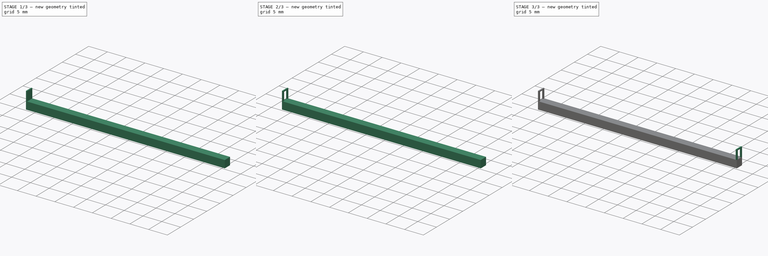
[diagram: build sequence overview — one tinted view per stage of 3, left to right]
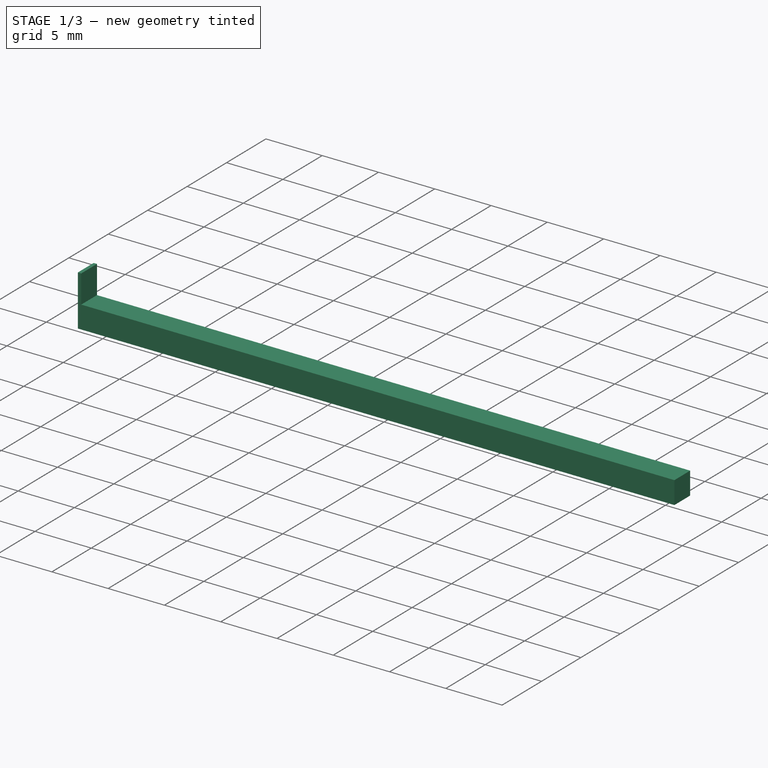
[diagram: stage 1 of 3 — iso view after this stage's code; geometry added in this stage tinted green]
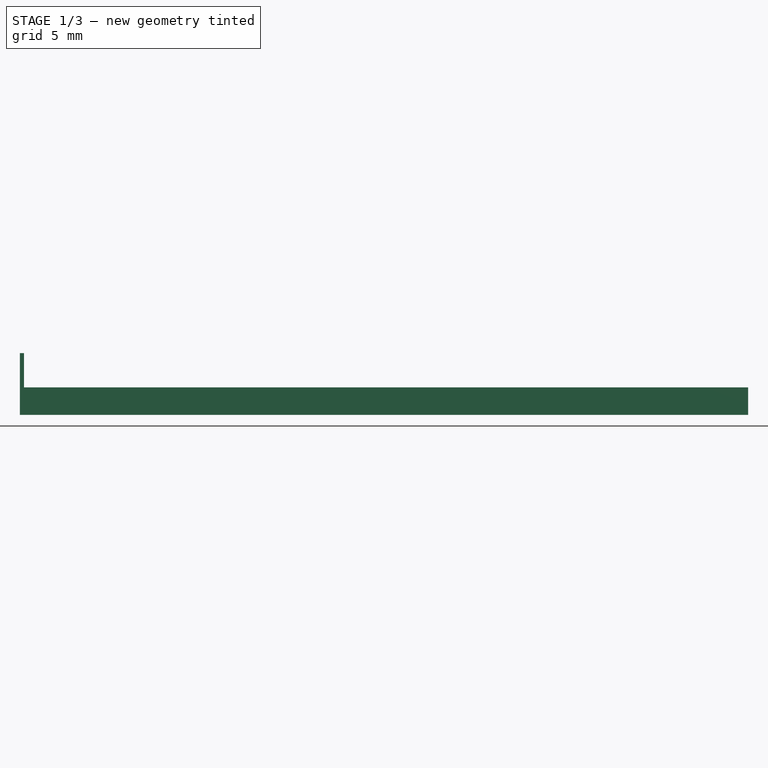
[diagram: stage 1 of 3 — front view after this stage's code; geometry added in this stage tinted green]
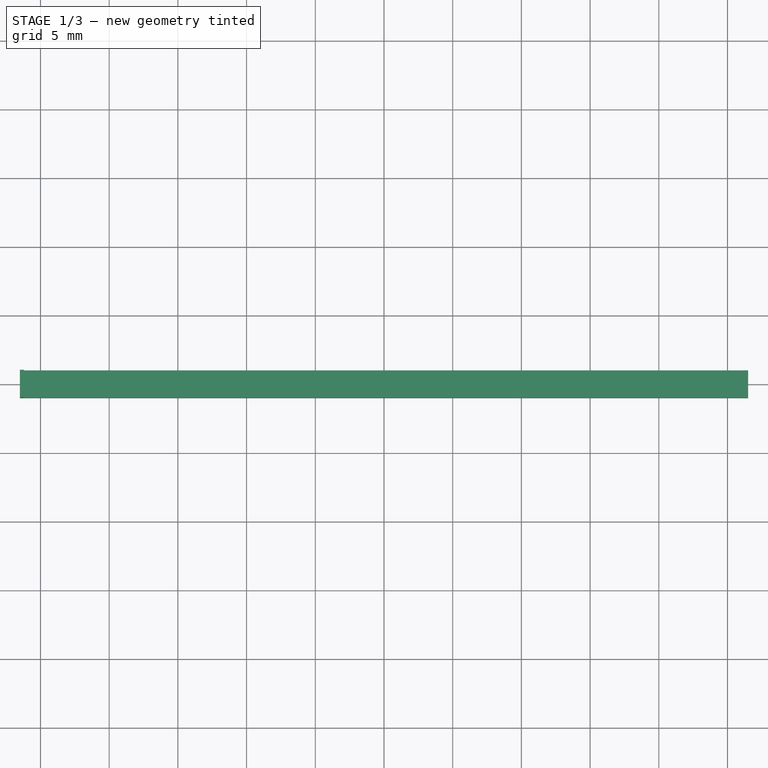
[diagram: stage 1 of 3 — top view after this stage's code; geometry added in this stage tinted green]
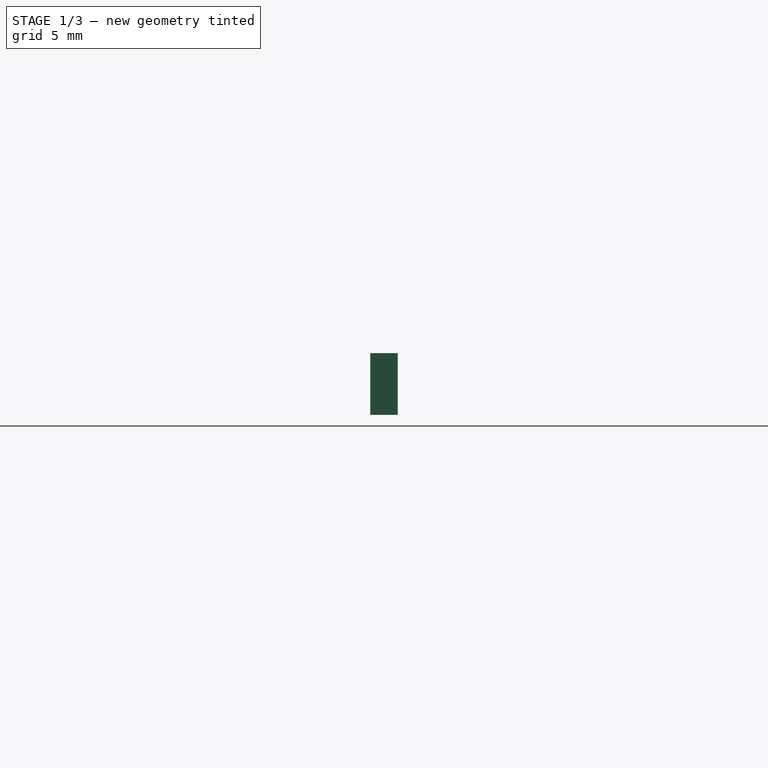
[diagram: stage 1 of 3 — right view after this stage's code; geometry added in this stage tinted green]
FCSTD DOCUMENT  (FreeCAD 0.19R)
Label: rebus-chipset-guard
License: All rights reserved
LicenseURL: http://en.wikipedia.org/wiki/All_rights_reserved
objects: Sketcher::SketchObject×3, PartDesign::Pad×2, PartDesign::Mirrored×2, PartDesign::Pocket×1, PartDesign::Body×1
note: 12 computed .brp shape members not serialized (recipe doc carries the construction recipe); baked Part::Feature solids carry a one-line shape summary decoded from their .brp

FEATURE [Sketcher::SketchObject] Sketch
  FullyConstrained = true
  MapMode = 5
  Support = -> [XY_Plane]
  sketch-geometry (4):
    g0: LineSegment StartX=-26.5 StartY=1 StartZ=0 EndX=26.5 EndY=1 EndZ=0
    g1: LineSegment StartX=26.5 StartY=1 StartZ=0 EndX=26.5 EndY=-1 EndZ=0
    g2: LineSegment StartX=26.5 StartY=-1 StartZ=0 EndX=-26.5 EndY=-1 EndZ=0
    g3: LineSegment StartX=-26.5 StartY=-1 StartZ=0 EndX=-26.5 EndY=1 EndZ=0
  constraints (10):
    c: Coincident(g0,g1)
    c: Coincident(g1,g2)
    c: Coincident(g2,g3)
    c: Coincident(g3,g0)
    c: Horizontal(g0)
    c: Vertical(g3)
    c: DistanceX(g0,g0) = 53
    c: DistanceY(g3,g3) = 2
    c: Symmetric(g2,g1,g-2)
    c: Symmetric(g0,g1,g-1)
FEATURE [PartDesign::Pad] Pad
  Direction = (1,1,1)
  Length = 2
  Length2 = 100
  Profile = -> Sketch
  Type = 0
FEATURE [Sketcher::SketchObject] Sketch001
  ExternalGeometry = -> [Pad]
  FullyConstrained = true
  MapMode = 5
  Placement = pos=(0,0,2) rot=(0,0,1;0rad)
  Support = -> [Pad]
  sketch-geometry (4):
    g0: LineSegment StartX=-26.5 StartY=1 StartZ=0 EndX=-26.2 EndY=1 EndZ=0
    g1: LineSegment StartX=-26.2 StartY=1 StartZ=0 EndX=-26.2 EndY=-1 EndZ=0
    g2: LineSegment StartX=-26.2 StartY=-1 StartZ=0 EndX=-26.5 EndY=-1 EndZ=0
    g3: LineSegment StartX=-26.5 StartY=-1 StartZ=0 EndX=-26.5 EndY=1 EndZ=0
  constraints (10):
    c: Coincident(g0,g1)
    c: Coincident(g1,g2)
    c: Coincident(g2,g3)
    c: Coincident(g3,g0)
    c: Horizontal(g0)
    c: Horizontal(g2)
    c: Vertical(g1)
    c: Coincident(g0,g-3)
    c: Coincident(g2,g-4)
    c: DistanceX(g0,g0) = 0.3
FEATURE [PartDesign::Pad] Pad001
  BaseFeature = -> Pad
  Direction = (1,1,1)
  Length = 2.5
  Length2 = 100
  Profile = -> Sketch001
  Type = 0
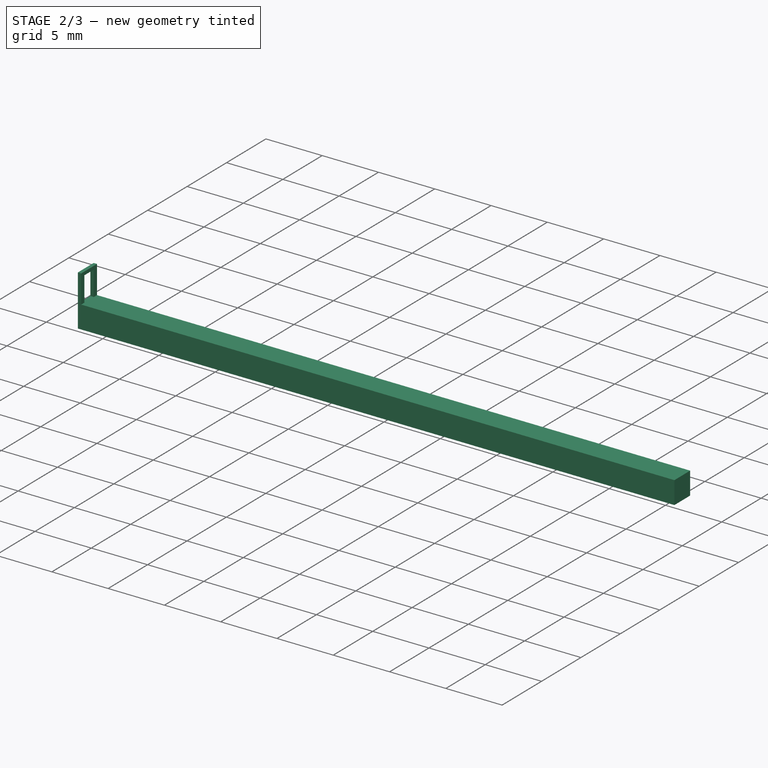
[diagram: stage 2 of 3 — iso view after this stage's code; geometry added in this stage tinted green]
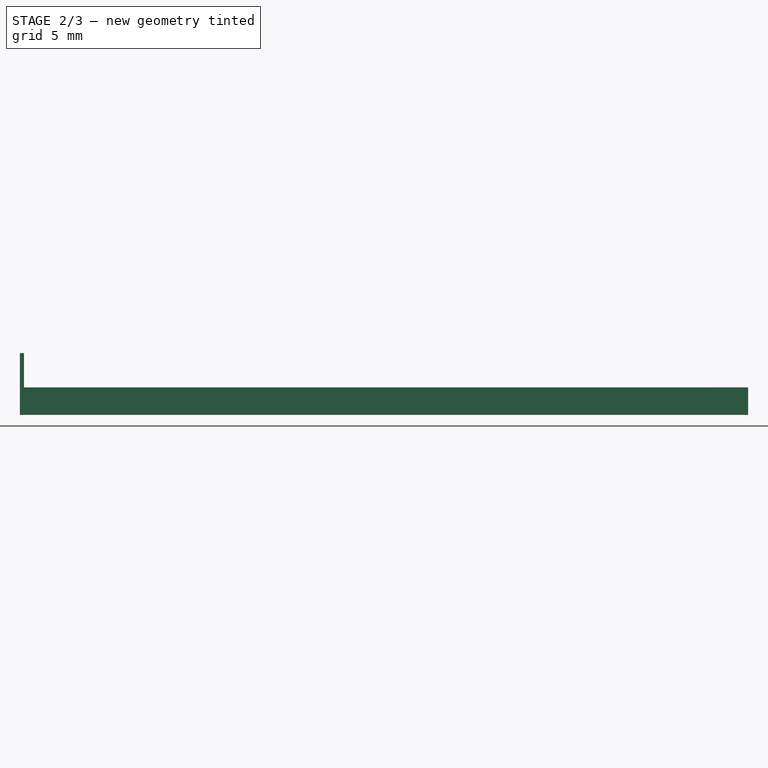
[diagram: stage 2 of 3 — front view after this stage's code; geometry added in this stage tinted green]
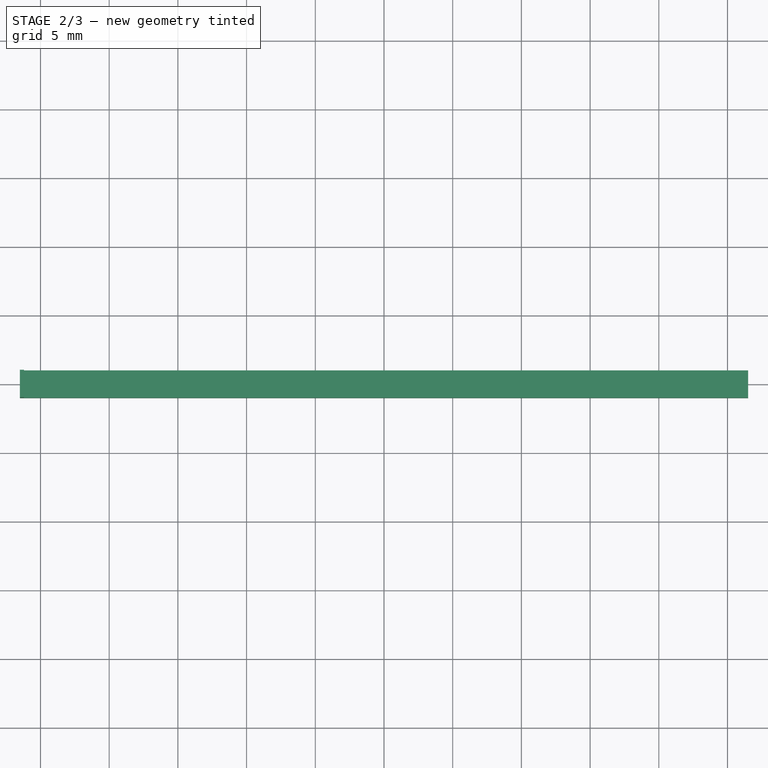
[diagram: stage 2 of 3 — top view after this stage's code; geometry added in this stage tinted green]
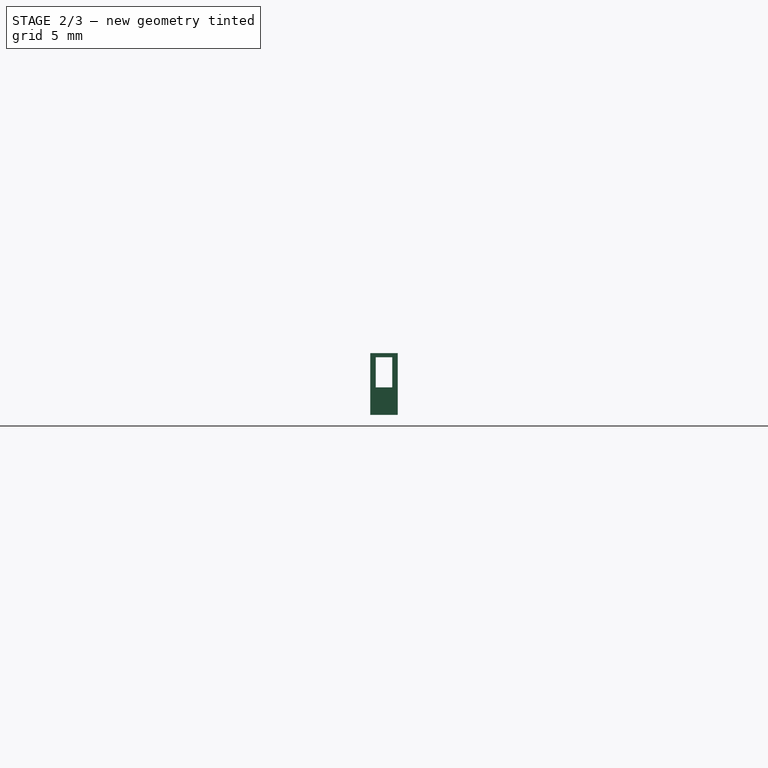
[diagram: stage 2 of 3 — right view after this stage's code; geometry added in this stage tinted green]
FEATURE [Sketcher::SketchObject] Sketch002
  ExternalGeometry = -> [Pad001]
  FullyConstrained = true
  MapMode = 5
  Placement = pos=(-26.5,0,0) rot=(0.57735,-0.57735,-0.57735;2.0944rad)
  Support = -> [Pad001]
  sketch-geometry (4):
    g0: LineSegment StartX=-0.6 StartY=4.2 StartZ=0 EndX=0.6 EndY=4.2 EndZ=0
    g1: LineSegment StartX=0.6 StartY=4.2 StartZ=0 EndX=0.6 EndY=2 EndZ=0
    g2: LineSegment StartX=0.6 StartY=2 StartZ=0 EndX=-0.6 EndY=2 EndZ=0
    g3: LineSegment StartX=-0.6 StartY=2 StartZ=0 EndX=-0.6 EndY=4.2 EndZ=0
  constraints (11):
    c: Coincident(g0,g1)
    c: Coincident(g1,g2)
    c: Coincident(g2,g3)
    c: Coincident(g3,g0)
    c: Horizontal(g2)
    c: Vertical(g1)
    c: Vertical(g3)
    c: DistanceY(g1,g1) = 2.2
    c: Horizontal(g1,g-3)
    c: DistanceX(g0,g0) = 1.2
    c: Symmetric(g0,g0,g-2)
FEATURE [PartDesign::Pocket] Pocket
  BaseFeature = -> Pad001
  Length = 0.3
  Length2 = 100
  Profile = -> Sketch002
  Type = 0
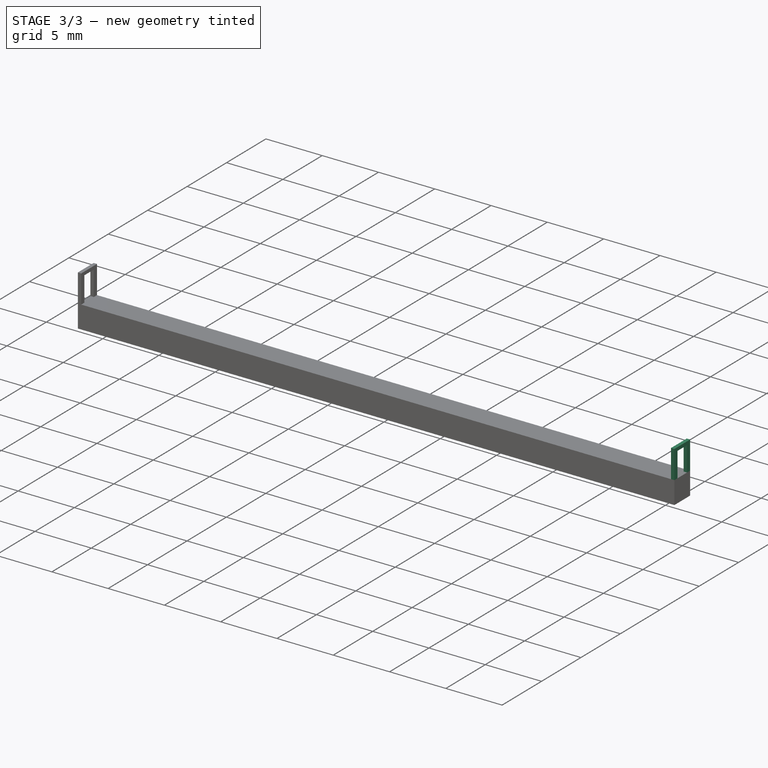
[diagram: stage 3 of 3 — iso view after this stage's code; geometry added in this stage tinted green]
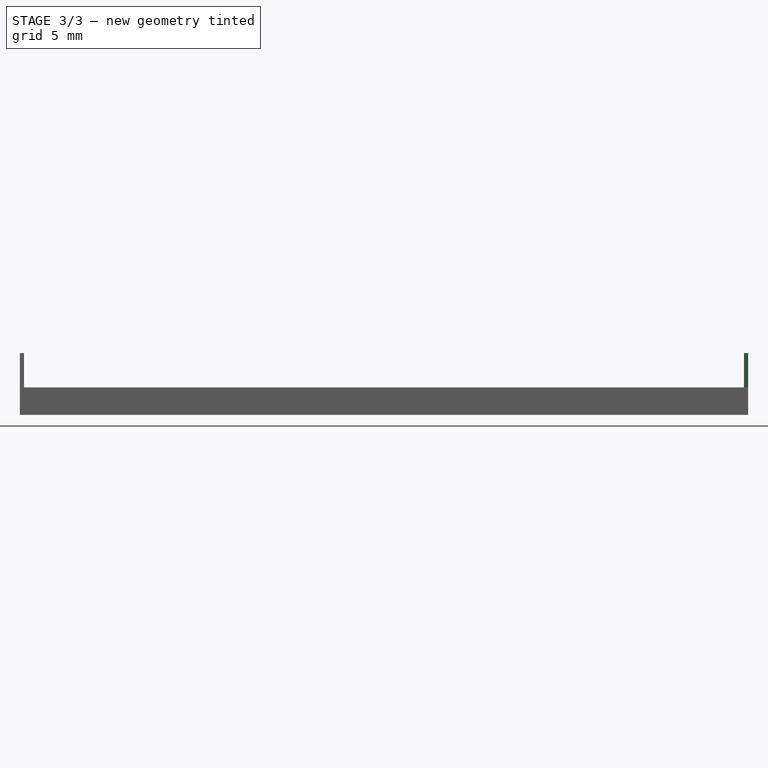
[diagram: stage 3 of 3 — front view after this stage's code; geometry added in this stage tinted green]
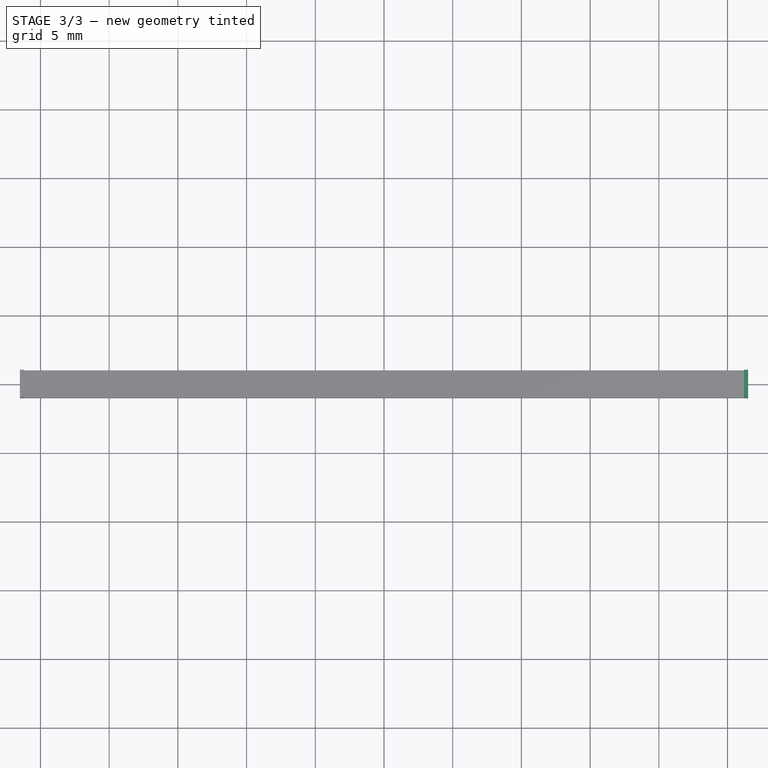
[diagram: stage 3 of 3 — top view after this stage's code; geometry added in this stage tinted green]
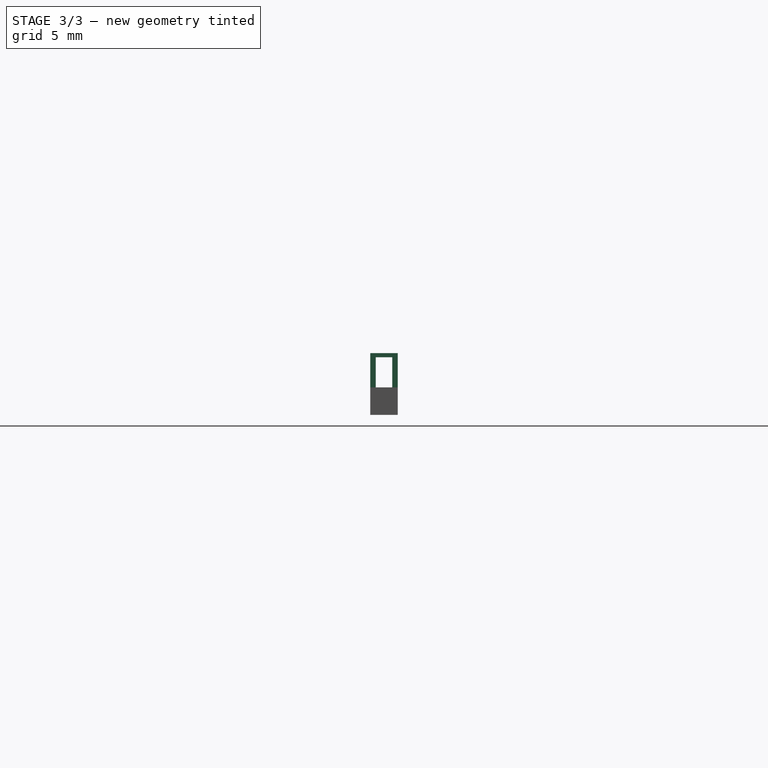
[diagram: stage 3 of 3 — right view after this stage's code; geometry added in this stage tinted green]
FEATURE [PartDesign::Mirrored] Mirrored
  BaseFeature = -> Pocket
  MirrorPlane = -> Sketch001 [V_Axis]
  Originals = -> [Pad001]
FEATURE [PartDesign::Mirrored] Mirrored001
  BaseFeature = -> Mirrored
  MirrorPlane = -> YZ_Plane
  Originals = -> [Pocket]
FEATURE [PartDesign::Body] Body
  Group = -> [Sketch,Pad,Sketch001,Pad001,Sketch002,Pocket,Mirrored,Mirrored001]
  Origin = -> Origin
  Tip = -> Mirrored001
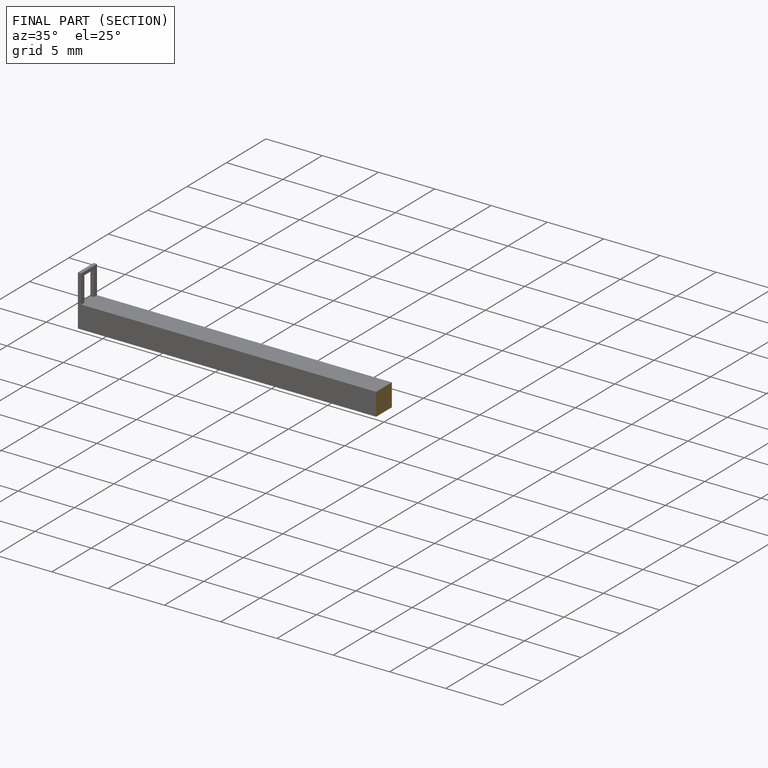
[diagram: finished part — half-section view (interior)]
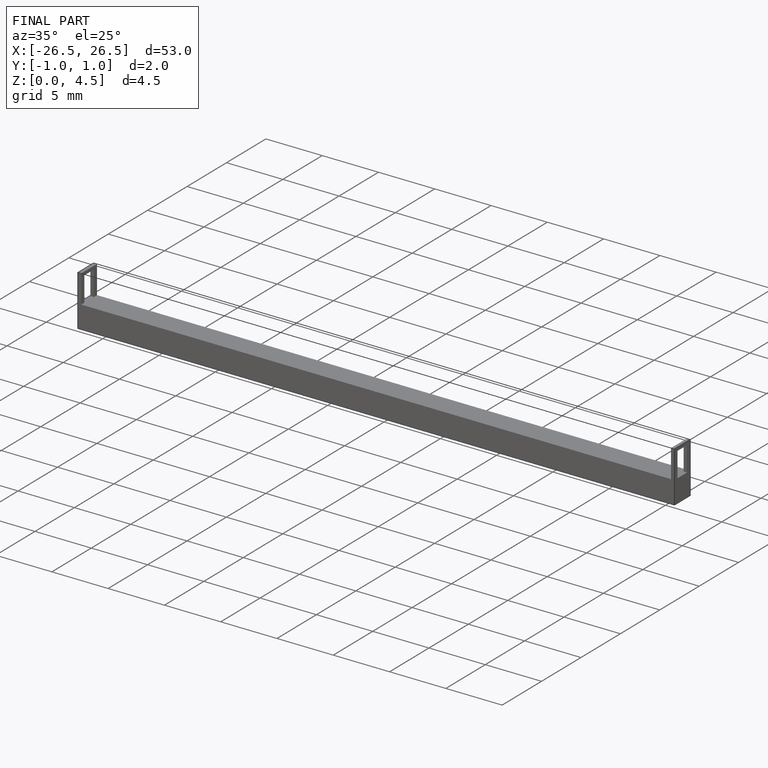
[diagram: finished part — iso view with bounding-box wireframe]
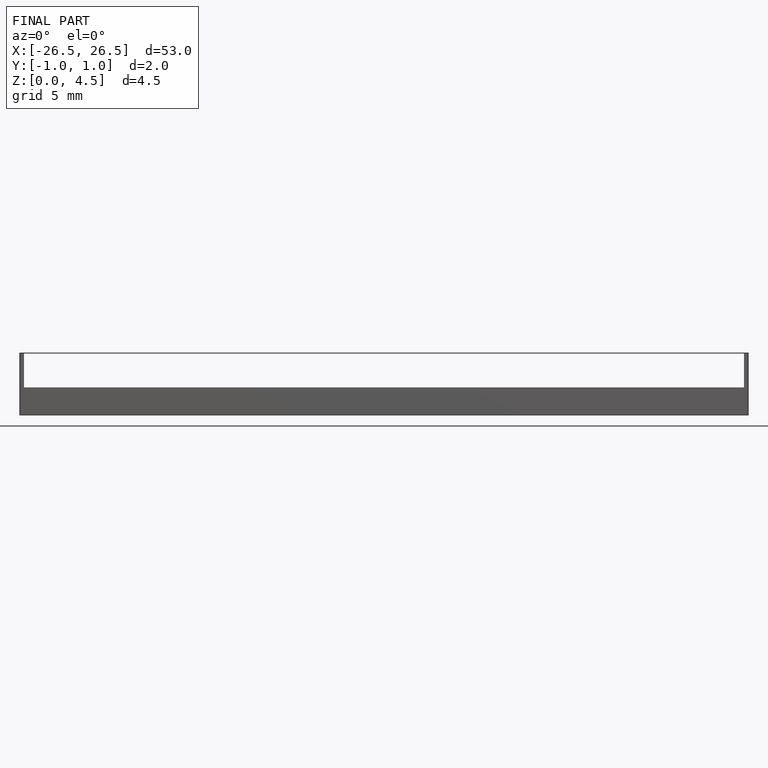
[diagram: finished part — front view with bounding-box wireframe]
